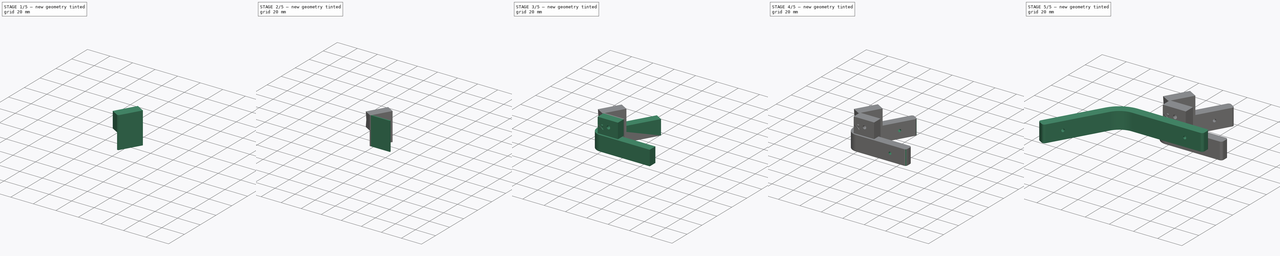
[diagram: build sequence overview — one tinted view per stage of 5, left to right]
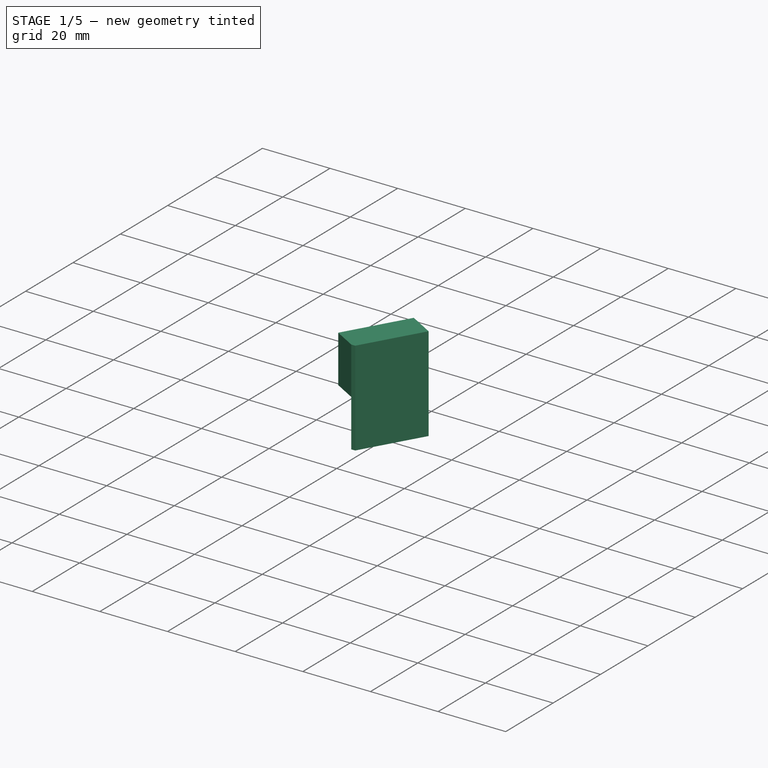
[diagram: stage 1 of 5 — iso view after this stage's code; geometry added in this stage tinted green]
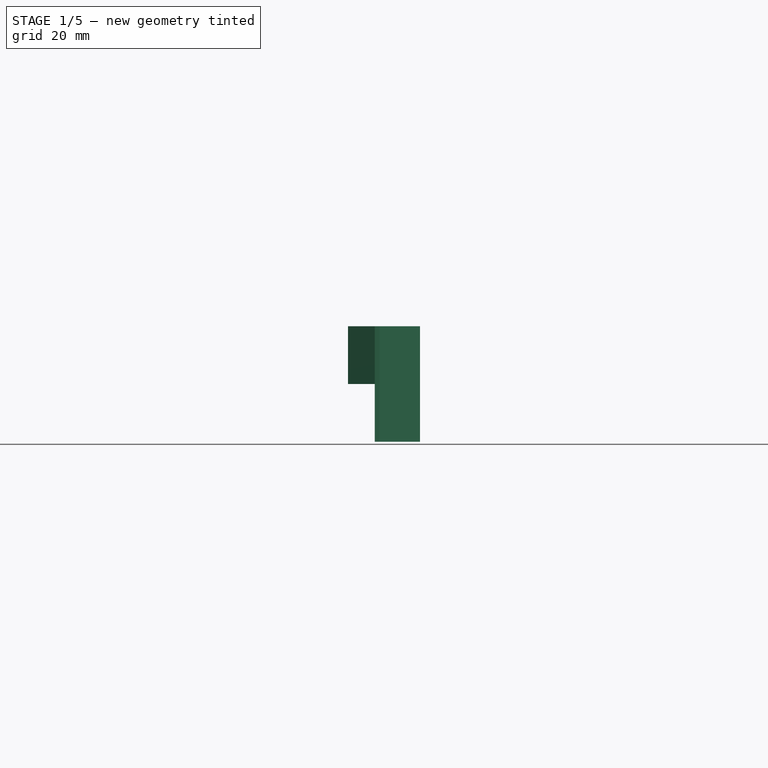
[diagram: stage 1 of 5 — front view after this stage's code; geometry added in this stage tinted green]
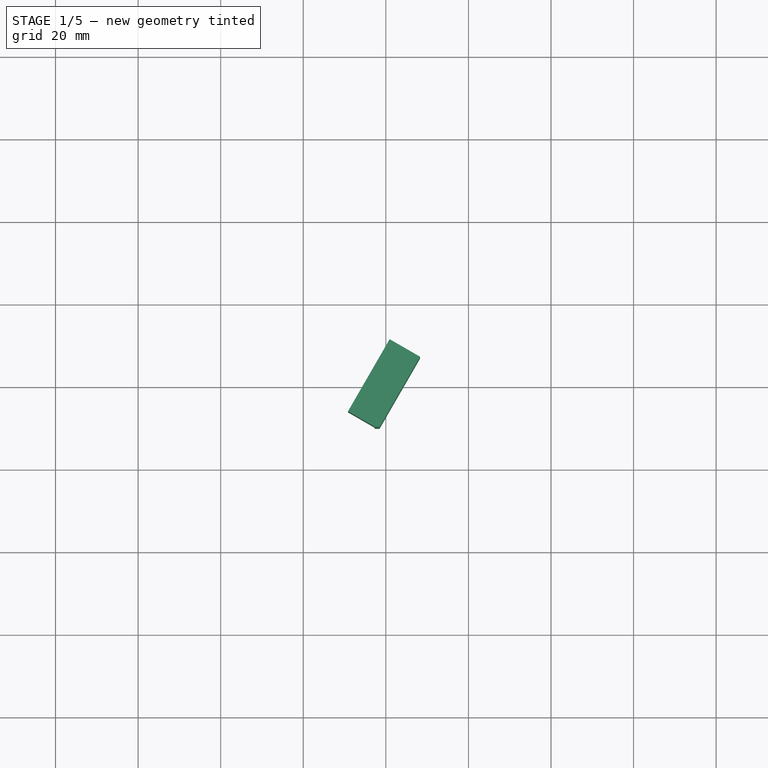
[diagram: stage 1 of 5 — top view after this stage's code; geometry added in this stage tinted green]
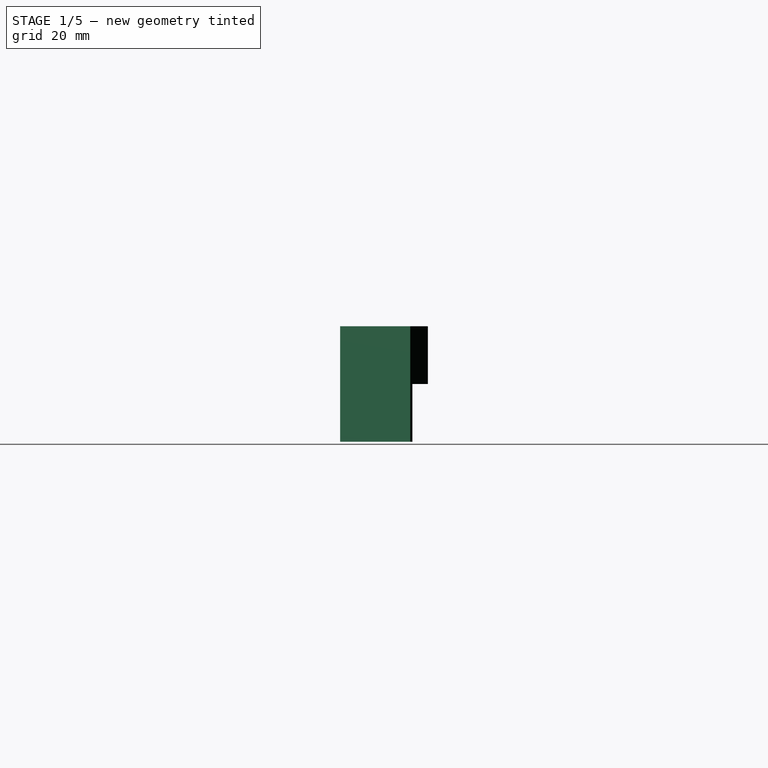
[diagram: stage 1 of 5 — right view after this stage's code; geometry added in this stage tinted green]
FCSTD DOCUMENT  (FreeCAD 0.19R)
Label: raccord
License: All rights reserved
LicenseURL: http://en.wikipedia.org/wiki/All_rights_reserved
objects: Sketcher::SketchObject×16, PartDesign::Pad×8, PartDesign::Pocket×8, PartDesign::Body×5, PartDesign::SubShapeBinder×2, PartDesign::ShapeBinder×2, PartDesign::Fillet×2
note: 61 computed .brp shape members not serialized (recipe doc carries the construction recipe); baked Part::Feature solids carry a one-line shape summary decoded from their .brp

FEATURE [Sketcher::SketchObject] Sketch
  FullyConstrained = true
  MapMode = 5
  Support = -> [XY_Plane]
  sketch-geometry (9):
    g0: LineSegment StartX=-100.981 StartY=-114.904 StartZ=0 EndX=66.3397 EndY=174.904 EndZ=0
    g1: LineSegment StartX=66.3397 StartY=174.904 StartZ=0 EndX=92.3205 EndY=159.904 EndZ=0
    g2: LineSegment StartX=92.3205 StartY=159.904 StartZ=0 EndX=17.3205 EndY=30 EndZ=0
    g3: LineSegment StartX=17.3205 StartY=30 StartZ=0 EndX=167.321 EndY=30 EndZ=0
    g4: LineSegment StartX=167.321 StartY=30 StartZ=0 EndX=167.321 EndY=0 EndZ=0
    g5: LineSegment StartX=167.321 StartY=0 StartZ=0 EndX=0 EndY=0 EndZ=0
    g6: LineSegment StartX=0 StartY=0 StartZ=0 EndX=-75 EndY=-129.904 EndZ=0
    g7: LineSegment StartX=-75 StartY=-129.904 StartZ=0 EndX=-100.981 EndY=-114.904 EndZ=0
    g8: LineSegment StartX=17.3205 StartY=30 StartZ=0 EndX=0 EndY=0 EndZ=0
  constraints (25):
    c: Coincident(g0,g1)
    c: Coincident(g1,g2)
    c: Coincident(g2,g3)
    c: Horizontal(g3)
    c: Coincident(g3,g4)
    c: Vertical(g4)
    c: Coincident(g4,g5)
    c: Coincident(g5,g6)
    c: Coincident(g6,g7)
    c: Coincident(g7,g0)
    c: Parallel(g2,g0)
    c: Parallel(g0,g6)
    c: Perpendicular(g1,g2)
    c: Perpendicular(g7,g6)
    c: Parallel(g3,g5)
    c: DistanceY(g4,g4) = 30
    c: Coincident(g8,g2)
    c: Coincident(g8,g5)
    c: Parallel(g6,g8)
    c: Distance(g1) = 30
    c: Coincident(g5,g-1)
    c: DistanceX(g3,g3) = 150
    c: Equal(g2,g6)
    c: Distance(g6) = 150
    c: Angle(g3,g2) = 1.0472
FEATURE [PartDesign::Pad] Pad
  Direction = (1,1,1)
  Length = 15
  Length2 = 100
  Profile = -> Sketch
  Type = 0
FEATURE [Sketcher::SketchObject] Sketch001
  ExternalGeometry = -> [Pad]
  FullyConstrained = true
  MapMode = 5
  Placement = pos=(0,0,15) rot=(0,0,1;0rad)
  Support = -> [Pad]
  sketch-geometry (13):
    g0: LineSegment StartX=85.8253 StartY=163.654 StartZ=0 EndX=4.33013 EndY=22.5 EndZ=0
    g1: LineSegment StartX=4.33013 StartY=22.5 StartZ=0 EndX=167.321 EndY=22.5 EndZ=0
    g2: LineSegment StartX=167.321 StartY=22.5 StartZ=0 EndX=167.321 EndY=7.5 EndZ=0
    g3: LineSegment StartX=167.321 StartY=7.5 StartZ=0 EndX=-4.33013 EndY=7.5 EndZ=0
    g4: LineSegment StartX=-4.33013 StartY=7.5 StartZ=0 EndX=-81.4952 EndY=-126.154 EndZ=0
    g5: LineSegment StartX=-81.4952 StartY=-126.154 StartZ=0 EndX=-94.4856 EndY=-118.654 EndZ=0
    g6: LineSegment StartX=-94.4856 StartY=-118.654 StartZ=0 EndX=72.8349 EndY=171.154 EndZ=0
    g7: LineSegment StartX=72.8349 StartY=171.154 StartZ=0 EndX=85.8253 EndY=163.654 EndZ=0
    g8: LineSegment StartX=167.321 StartY=30 StartZ=0 EndX=167.321 EndY=22.5 EndZ=0
    g9: LineSegment StartX=167.321 StartY=7.5 StartZ=0 EndX=167.321 EndY=0 EndZ=0
    g10: LineSegment StartX=66.3397 StartY=174.904 StartZ=0 EndX=72.8349 EndY=171.154 EndZ=0
    g11: LineSegment StartX=85.8253 StartY=163.654 StartZ=0 EndX=92.3205 EndY=159.904 EndZ=0
    g12: LineSegment StartX=4.33013 StartY=22.5 StartZ=0 EndX=-4.33013 EndY=7.5 EndZ=0
  constraints (34):
    c: PointOnObject(g0,g-6)
    c: Horizontal(g1)
    c: PointOnObject(g1,g-8)
    c: Coincident(g1,g2)
    c: PointOnObject(g2,g-8)
    c: Coincident(g2,g3)
    c: Horizontal(g3)
    c: Coincident(g3,g4)
    c: PointOnObject(g4,g-7)
    c: Coincident(g4,g5)
    c: PointOnObject(g5,g-7)
    c: Coincident(g5,g6)
    c: PointOnObject(g6,g-6)
    c: Coincident(g6,g7)
    c: Coincident(g7,g0)
    c: DistanceY(g2,g2) = 15
    c: Coincident(g8,g-8)
    c: Coincident(g8,g1)
    c: Coincident(g9,g2)
    c: Coincident(g9,g-8)
    c: Equal(g8,g9)
    c: Distance(g7) = 15
    c: Parallel(g0,g-4)
    c: Parallel(g0,g6)
    c: Parallel(g6,g4)
    c: Coincident(g10,g-6)
    c: Coincident(g10,g6)
    c: Coincident(g11,g0)
    c: Coincident(g11,g-6)
    c: Equal(g10,g11)
    c: Coincident(g1,g0)
    c: Coincident(g12,g0)
    c: Coincident(g12,g3)
    c: Parallel(g12,g0)
FEATURE [PartDesign::Pad] Pad001
  BaseFeature = -> Pad
  Direction = (1,1,1)
  Length = 15
  Length2 = 100
  Profile = -> Sketch001
  Type = 0
FEATURE [PartDesign::ShapeBinder] ShapeBinder001
  Support = -> [Pad001]
  TraceSupport = false
FEATURE [Sketcher::SketchObject] Sketch011
  ExternalGeometry = -> [ShapeBinder001]
  FullyConstrained = false
  MapMode = 5
  Placement = pos=(0,0,15) rot=(0,0,1;0rad)
  Support = -> [ShapeBinder001]
  sketch-geometry (7):
    g0: LineSegment StartX=19.0526 StartY=31 StartZ=0 EndX=96.847 EndY=31 EndZ=0
    g1: LineSegment StartX=17.3205 StartY=30 StartZ=0 EndX=27.4186 EndY=47.4904 EndZ=0
    g2: LineSegment StartX=27.4186 StartY=47.4904 StartZ=0 EndX=28.2846 EndY=46.9904 EndZ=0
    g3: LineSegment StartX=28.2846 StartY=46.9904 StartZ=0 EndX=18.4752 EndY=30 EndZ=0
    g4: LineSegment StartX=18.4752 StartY=30 StartZ=0 EndX=17.3205 EndY=30 EndZ=0
    g5: Circle CenterX=22.5167 CenterY=33 CenterZ=0 NormalX=0 NormalY=0 NormalZ=1 AngleXU=0 Radius=2
    g6: LineSegment StartX=22.5167 StartY=33 StartZ=0 EndX=19.9186 EndY=34.5 EndZ=0
  constraints (20):
    c: Horizontal(g0)
    c: DistanceY(g-3,g0) = 1
    c: Coincident(g-4,g1)
    c: PointOnObject(g1,g-4)
    c: Coincident(g1,g2)
    c: Coincident(g2,g3)
    c: PointOnObject(g3,g-3)
    c: Coincident(g3,g4)
    c: Coincident(g4,g1)
    c: Parallel(g3,g1)
    c: Distance(g2) = 1
    c: Perpendicular(g2,g1)
    c: PointOnObject(g0,g3)
    c: Radius(g5) = 2
    c: Tangent(g5,g3)
    c: Tangent(g5,g0)
    c: Coincident(g6,g5)
    c: PointOnObject(g6,g1)
    c: Perpendicular(g6,g1)
    c: Distance(g6,g1) = 15
FEATURE [PartDesign::Pad] Pad006
  Direction = (1,1,1)
  Length = 28
  Length2 = 100
  Midplane = true
  Profile = -> Sketch011
  Type = 0
FEATURE [Sketcher::SketchObject] Sketch012
  ExternalGeometry = -> [Pad006]
  FullyConstrained = true
  MapMode = 5
  Placement = pos=(-6.2e-15,3.6e-15,0) rot=(-0.377964,0.654654,0.654654;3.86433rad)
  Support = -> [Pad006]
  sketch-geometry (4):
    g0: LineSegment StartX=-54.8372 StartY=29 StartZ=0 EndX=-34.641 EndY=29 EndZ=0
    g1: LineSegment StartX=-34.641 StartY=29 StartZ=0 EndX=-34.641 EndY=15 EndZ=0
    g2: LineSegment StartX=-34.641 StartY=15 StartZ=0 EndX=-54.8372 EndY=15 EndZ=0
    g3: LineSegment StartX=-54.8372 StartY=15 StartZ=0 EndX=-54.8372 EndY=29 EndZ=0
  constraints (10):
    c: Coincident(g0,g1)
    c: Coincident(g1,g2)
    c: Coincident(g2,g3)
    c: Coincident(g3,g0)
    c: Horizontal(g2)
    c: Vertical(g1)
    c: Vertical(g3)
    c: Coincident(g0,g-4)
    c: Coincident(g0,g-3)
    c: DistanceY(g1,g1) = 14
FEATURE [PartDesign::Pad] Pad007
  BaseFeature = -> Pad006
  Direction = (1,1,1)
  Length = 7.5
  Length2 = 100
  Profile = -> Sketch012
  Type = 0
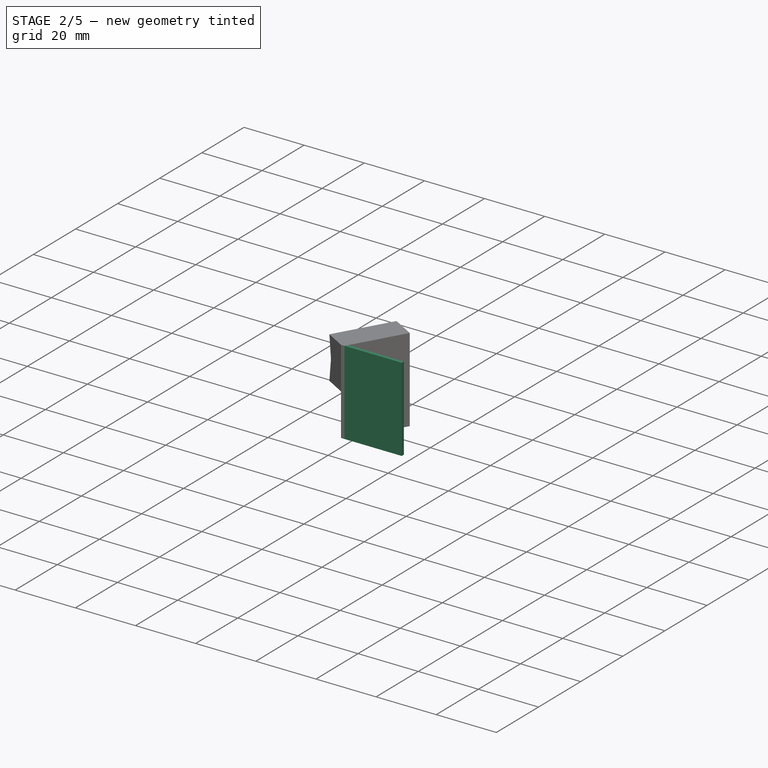
[diagram: stage 2 of 5 — iso view after this stage's code; geometry added in this stage tinted green]
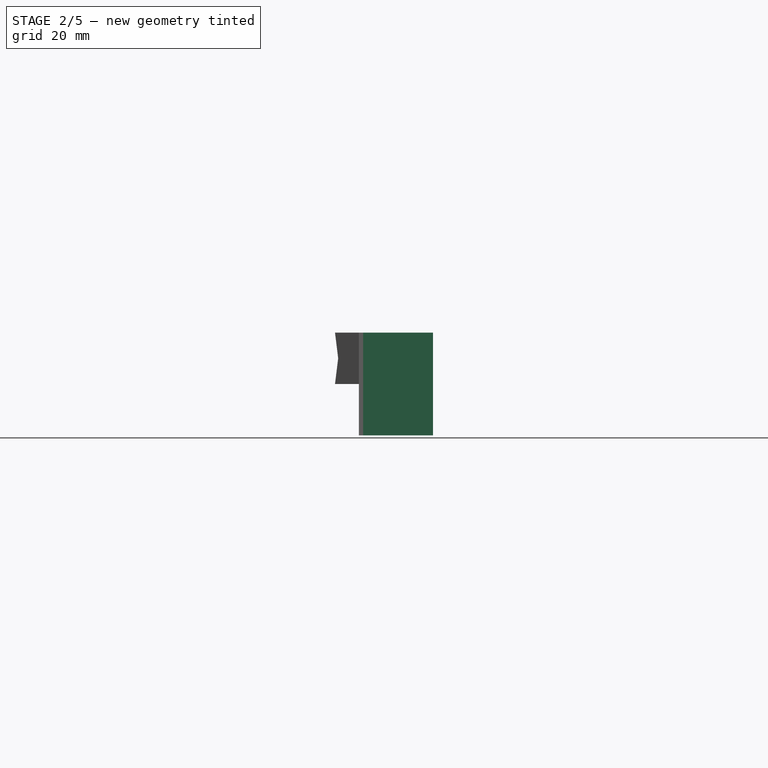
[diagram: stage 2 of 5 — front view after this stage's code; geometry added in this stage tinted green]
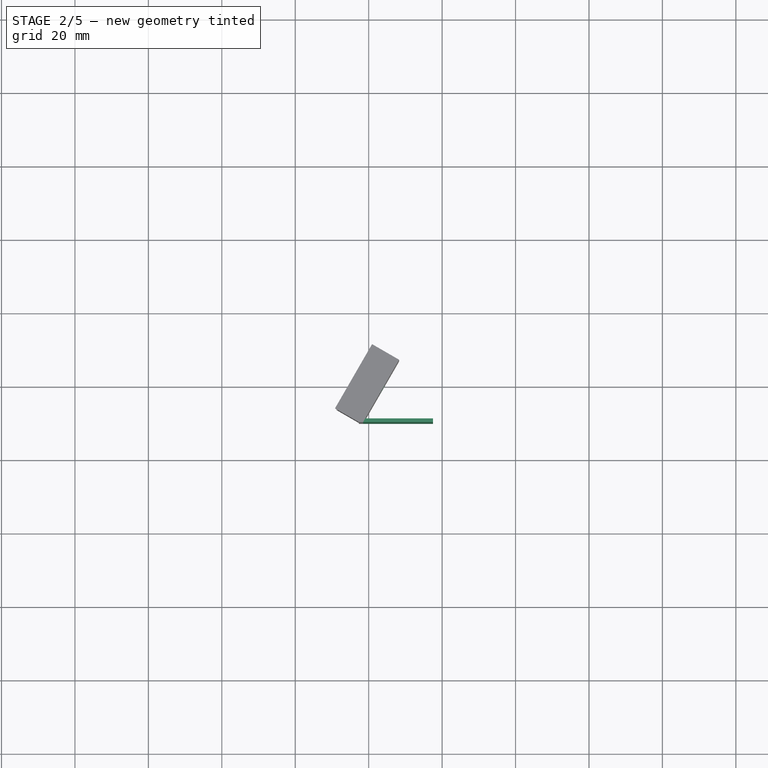
[diagram: stage 2 of 5 — top view after this stage's code; geometry added in this stage tinted green]
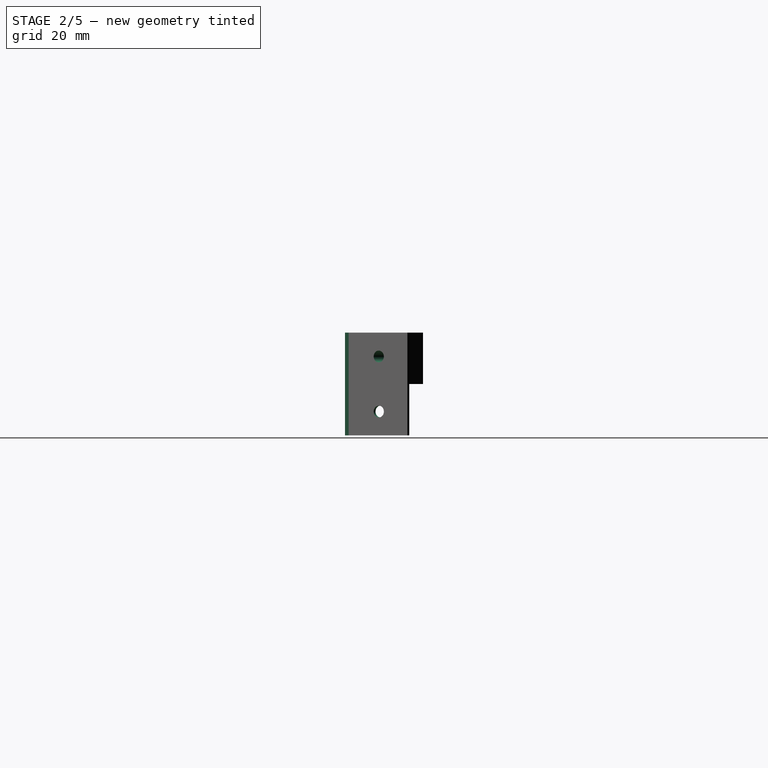
[diagram: stage 2 of 5 — right view after this stage's code; geometry added in this stage tinted green]
FEATURE [PartDesign::Body] Body001  label="support-inter"
  Group = -> [Binder,Sketch002,Pad002,Sketch006,Pocket002,Sketch007,Pocket003,Fillet001]
  Origin = -> Origin001
  Placement = pos=(0,0,15) rot=(0,0,1;0rad)
  Tip = -> Fillet001
FEATURE [PartDesign::SubShapeBinder] Binder001
  BindMode = 0
  ClaimChildren = false
  Context = -> Body003 [Binder001.]
  Fuse = false
  MakeFace = true
  PartialLoad = false
  Relative = true
  Support = -> [Body[Pad001.Face11]]
  _Version = 2
FEATURE [Sketcher::SketchObject] Sketch008
  ExternalGeometry = -> [Binder001]
  FullyConstrained = false
  MapMode = 5
  Placement = pos=(0,0,15) rot=(0,0,1;0rad)
  Support = -> [Binder001]
  sketch-geometry (8):
    g0: LineSegment StartX=19.0526 StartY=31 StartZ=0 EndX=18.4752 EndY=30 EndZ=0
    g1: LineSegment StartX=18.4752 StartY=30 StartZ=0 EndX=37.5167 EndY=30 EndZ=0
    g2: LineSegment StartX=37.5167 StartY=30 StartZ=0 EndX=37.5167 EndY=31 EndZ=0
    g3: LineSegment StartX=37.5167 StartY=31 StartZ=0 EndX=19.0526 EndY=31 EndZ=0
    g4: LineSegment StartX=19.0526 StartY=31 StartZ=0 EndX=37.9859 EndY=63.7935 EndZ=0
    g5: Circle CenterX=22.5167 CenterY=33 CenterZ=0 NormalX=0 NormalY=0 NormalZ=1 AngleXU=0 Radius=2
    g6: LineSegment StartX=22.5167 StartY=33 StartZ=0 EndX=22.5167 EndY=30 EndZ=0
    g7: LineSegment StartX=19.0526 StartY=31 StartZ=0 EndX=18.4752 EndY=30 EndZ=0
  constraints (22):
    c: Coincident(g0,g1)
    c: PointOnObject(g1,g-3)
    c: Coincident(g1,g2)
    c: Vertical(g2)
    c: Coincident(g2,g3)
    c: Coincident(g3,g0)
    c: Horizontal(g3)
    c: Parallel(g4,g-4)
    c: Distance(g4,g-4) = 1
    c: DistanceY(g2,g2) = 1
    c: Coincident(g4,g0)
    c: Radius(g5) = 2
    c: Tangent(g5,g4)
    c: Tangent(g5,g3)
    c: Coincident(g6,g5)
    c: Vertical(g6)
    c: PointOnObject(g6,g1)
    c: DistanceX(g6,g1) = 15
    c: PointOnObject(g0,g-3)
    c: Coincident(g7,g0)
    c: Parallel(g7,g-4)
    c: Coincident(g0,g7)
FEATURE [PartDesign::Pad] Pad004
  Direction = (1,1,1)
  Length = 28
  Length2 = 100
  Midplane = true
  Profile = -> Sketch008
  Type = 0
FEATURE [Sketcher::SketchObject] Sketch013
  ExternalGeometry = -> [Pad007]
  FullyConstrained = true
  MapMode = 5
  Placement = pos=(0.866025,-0.5,0) rot=(0.774597,0.447214,0.447214;1.82348rad)
  Support = -> [Pad007]
  sketch-geometry (4):
    g0: LineSegment StartX=45.8372 StartY=29 StartZ=0 EndX=45.8372 EndY=1 EndZ=0
    g1: Circle CenterX=45.8372 CenterY=22.5 CenterZ=0 NormalX=0 NormalY=0 NormalZ=1 AngleXU=0 Radius=1.6
    g2: Circle CenterX=45.8372 CenterY=7.5 CenterZ=0 NormalX=0 NormalY=0 NormalZ=1 AngleXU=0 Radius=1.6
    g3: GeomPoint X=45.8372 Y=15 Z=0
  constraints (10):
    c: PointOnObject(g0,g-3)
    c: PointOnObject(g0,g-4)
    c: Vertical(g0)
    c: DistanceX(g0,g-5) = 9
    c: PointOnObject(g1,g0)
    c: Equal(g2,g1)
    c: Radius(g2) = 1.6
    c: Symmetric(g1,g2,g3)
    c: Symmetric(g0,g0,g3)
    c: DistanceY(g2,g1) = 15
FEATURE [PartDesign::Pocket] Pocket005
  BaseFeature = -> Pad007
  Length = 5
  Length2 = 100
  Profile = -> Sketch013
  Type = 1
FEATURE [PartDesign::Body] Body003  label="support_charniere1"
  Group = -> [Binder001,Sketch008,Pad004,Sketch009,Pad005,Sketch010,Pocket004,Sketch014,Pocket006]
  Origin = -> Origin003
  Tip = -> Pocket006
FEATURE [Sketcher::SketchObject] Sketch015
  ExternalGeometry = -> [Pocket005]
  FullyConstrained = true
  MapMode = 5
  Placement = pos=(-6.49519,3.75,0) rot=(-0.377964,0.654654,0.654654;3.86433rad)
  Support = -> [Pocket005]
  sketch-geometry (3):
    g0: LineSegment StartX=-39.8372 StartY=25 StartZ=0 EndX=-39.8372 EndY=19 EndZ=0
    g1: LineSegment StartX=-39.8372 StartY=19 StartZ=0 EndX=-34.641 EndY=22 EndZ=0
    g2: LineSegment StartX=-34.641 StartY=22 StartZ=0 EndX=-39.8372 EndY=25 EndZ=0
  constraints (8):
    c: Coincident(g0,g1)
    c: Coincident(g1,g2)
    c: Coincident(g2,g0)
    c: Vertical(g0)
    c: Symmetric(g-3,g-3,g1)
    c: Equal(g2,g1)
    c: Equal(g1,g0)
    c: DistanceY(g0,g0) = 6
FEATURE [PartDesign::Pocket] Pocket007
  BaseFeature = -> Pocket005
  Length = 1
  Length2 = 100
  Profile = -> Sketch015
  Type = 0
FEATURE [PartDesign::Body] Body004  label="support_charniere2"
  Group = -> [ShapeBinder001,Sketch011,Pad006,Sketch012,Pad007,Sketch013,Pocket005,Sketch015,Pocket007]
  Origin = -> Origin004
  Tip = -> Pocket007
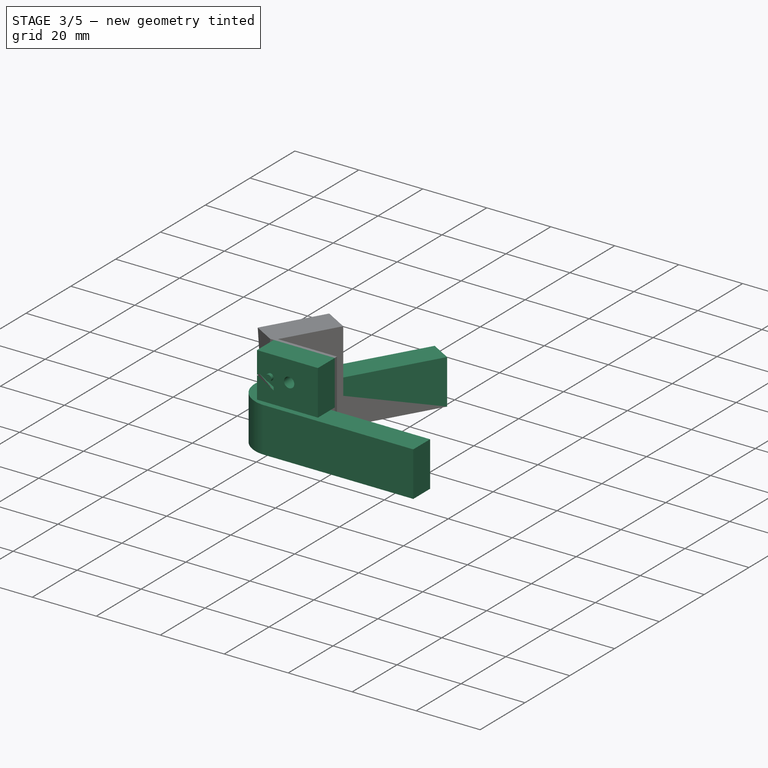
[diagram: stage 3 of 5 — iso view after this stage's code; geometry added in this stage tinted green]
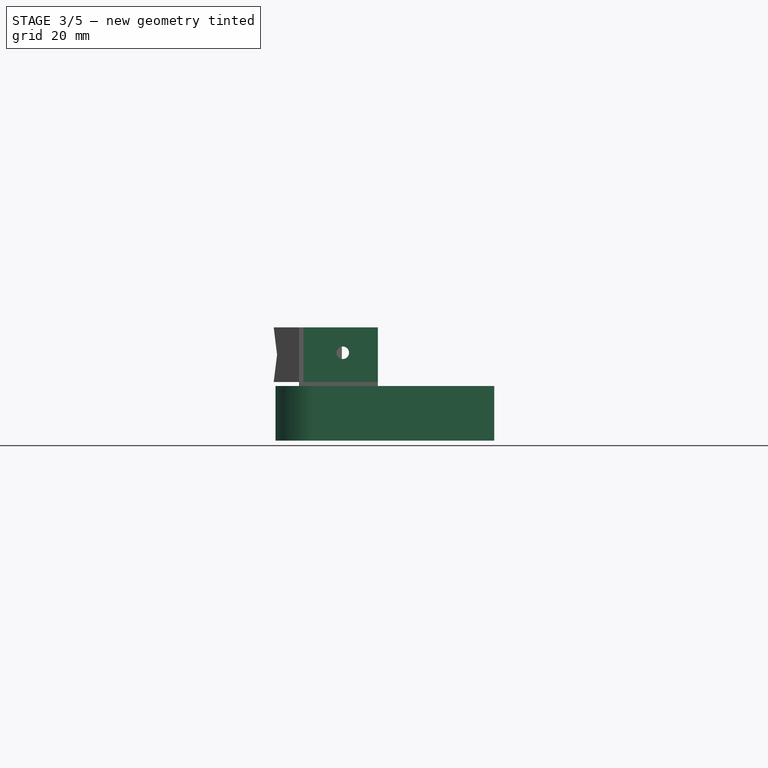
[diagram: stage 3 of 5 — front view after this stage's code; geometry added in this stage tinted green]
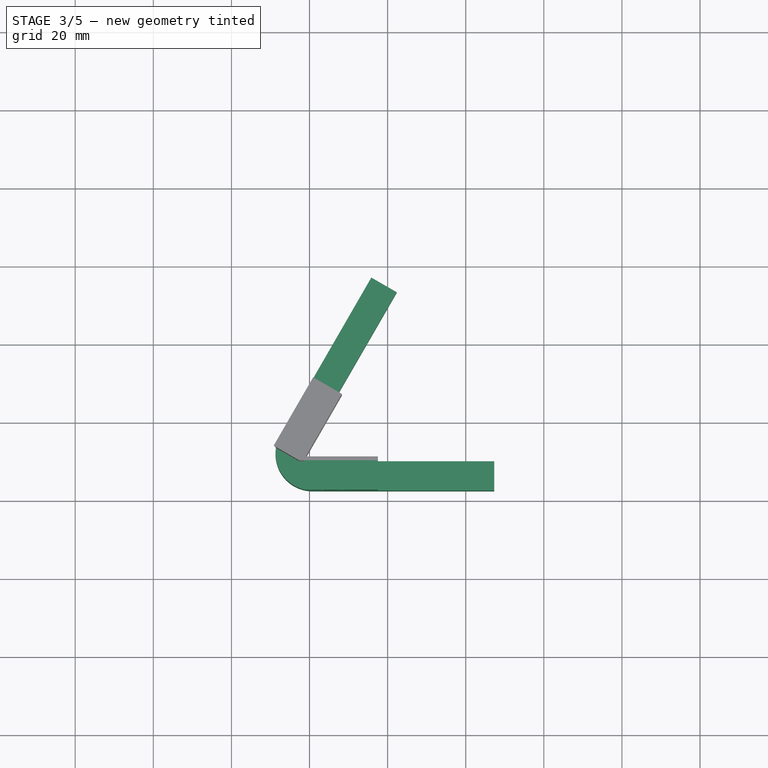
[diagram: stage 3 of 5 — top view after this stage's code; geometry added in this stage tinted green]
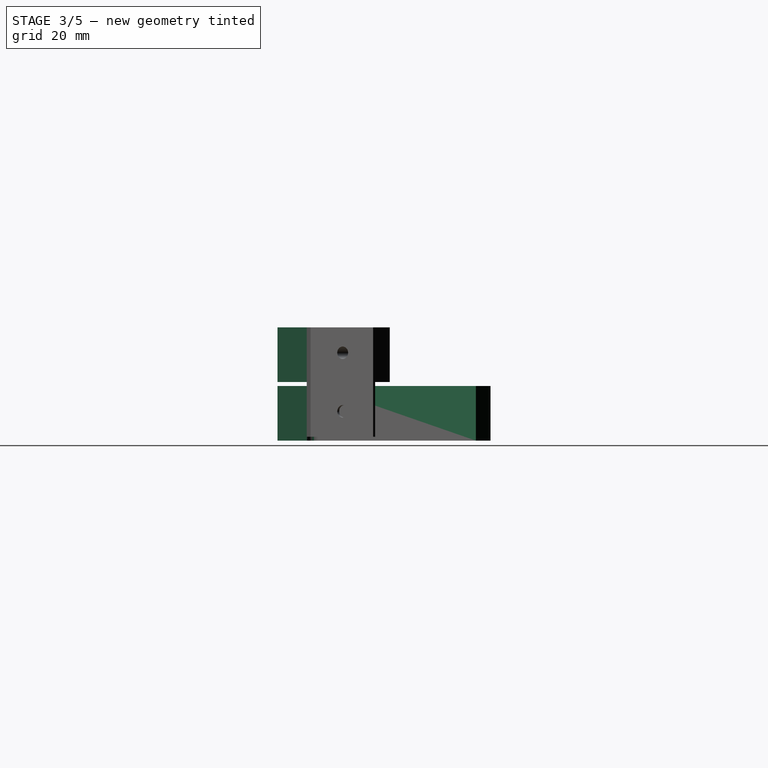
[diagram: stage 3 of 5 — right view after this stage's code; geometry added in this stage tinted green]
FEATURE [PartDesign::Body] Body  label="Branche"
  Group = -> [Sketch,Pad,Sketch001,Pad001]
  Origin = -> Origin
  Tip = -> Pad001
FEATURE [PartDesign::SubShapeBinder] Binder
  BindMode = 0
  ClaimChildren = false
  Context = -> Body001 [Binder.]
  Fuse = false
  MakeFace = true
  PartialLoad = false
  Relative = true
  Support = -> [Body[Pad001.Face11]]
  _Version = 2
FEATURE [Sketcher::SketchObject] Sketch002
  ExternalGeometry = -> [Binder]
  FullyConstrained = true
  MapMode = 5
  Support = -> [XY_Plane001]
  sketch-geometry (12):
    g0: LineSegment StartX=52.3205 StartY=50.2073 StartZ=0 EndX=52.3205 EndY=22.5 EndZ=0
    g1: LineSegment StartX=52.3205 StartY=50.2073 StartZ=0 EndX=28.3253 EndY=64.0609 EndZ=0
    g2: GeomPoint X=34.8205 Y=60.3109 Z=0
    g3: GeomPoint X=52.3205 Y=30 Z=0
    g4: LineSegment StartX=67.3205 StartY=22.5 StartZ=0 EndX=20.7846 EndY=22.5 EndZ=0
    g5: LineSegment StartX=12.5574 StartY=36.75 StartZ=0 EndX=35.8253 EndY=77.0513 EndZ=0
    g6: LineSegment StartX=35.8253 StartY=77.0513 StartZ=0 EndX=42.3205 EndY=73.3013 EndZ=0
    g7: LineSegment StartX=42.3205 StartY=73.3013 StartZ=0 EndX=19.0526 EndY=33 EndZ=0
    g8: LineSegment StartX=20.7846 StartY=30 StartZ=0 EndX=67.3205 EndY=30 EndZ=0
    g9: LineSegment StartX=67.3205 StartY=30 StartZ=0 EndX=67.3205 EndY=22.5 EndZ=0
    g10: ArcOfCircle CenterX=20.7846 CenterY=32 CenterZ=0 NormalX=0 NormalY=0 NormalZ=1 AngleXU=0 Radius=9.5 StartAngle=2.61799 EndAngle=4.71239
    g11: ArcOfCircle CenterX=20.7846 CenterY=32 CenterZ=0 NormalX=0 NormalY=0 NormalZ=1 AngleXU=0 Radius=2 StartAngle=2.618 EndAngle=4.71239
  constraints (35):
    c: PointOnObject(g2,g1)
    c: PointOnObject(g3,g0)
    c: PointOnObject(g5,g-6)
    c: Coincident(g5,g6)
    c: PointOnObject(g6,g-4)
    c: Coincident(g6,g7)
    c: PointOnObject(g8,g-3)
    c: Coincident(g8,g9)
    c: Coincident(g9,g4)
    c: Vertical(g9)
    c: Tangent(g4,g10) = 1.5708
    c: Tangent(g5,g10) = 1.5708
    c: PointOnObject(g5,g-6)
    c: Vertical(g8,g4)
    c: Distance(g5,g1) = 15
    c: DistanceX(g0,g4) = 15
    c: PointOnObject(g0,g-5)
    c: PointOnObject(g1,g-6)
    c: DistanceX(g4,g-5) = 100
    c: PointOnObject(g3,g8)
    c: Horizontal(g8)
    c: PointOnObject(g7,g-4)
    c: Coincident(g11,g10)
    c: Coincident(g11,g7)
    c: Coincident(g11,g8)
    c: Vertical(g0)
    c: PointOnObject(g4,g-5)
    c: Perpendicular(g1,g7)
    c: Coincident(g0,g1)
    c: Equal(g0,g1)
    c: Radius(g11) = 2
    c: PointOnObject(g4,g-5)
    c: PointOnObject(g2,g7)
    c: Perpendicular(g6,g5)
    c: Distance(g5,g-6) = 62.9904
FEATURE [PartDesign::Pad] Pad002
  Direction = (1,1,1)
  Length = 14
  Length2 = 100
  Profile = -> Sketch002
  Type = 0
FEATURE [Sketcher::SketchObject] Sketch009
  ExternalGeometry = -> [Pad004]
  FullyConstrained = true
  MapMode = 5
  Placement = pos=(1.11e-14,30,0) rot=(1,0,0;1.5708rad)
  Support = -> [Pad004]
  sketch-geometry (4):
    g0: LineSegment StartX=18.4752 StartY=29 StartZ=0 EndX=37.5167 EndY=29 EndZ=0
    g1: LineSegment StartX=37.5167 StartY=29 StartZ=0 EndX=37.5167 EndY=15 EndZ=0
    g2: LineSegment StartX=37.5167 StartY=15 StartZ=0 EndX=18.4752 EndY=15 EndZ=0
    g3: LineSegment StartX=18.4752 StartY=15 StartZ=0 EndX=18.4752 EndY=29 EndZ=0
  constraints (11):
    c: Coincident(g0,g1)
    c: Coincident(g1,g2)
    c: Coincident(g2,g3)
    c: Coincident(g3,g0)
    c: Horizontal(g0)
    c: Horizontal(g2)
    c: Vertical(g1)
    c: Vertical(g3)
    c: Coincident(g0,g-3)
    c: PointOnObject(g1,g-4)
    c: DistanceY(g1,g1) = 14
FEATURE [PartDesign::Pad] Pad005
  BaseFeature = -> Pad004
  Direction = (1,1,1)
  Length = 7.5
  Length2 = 100
  Profile = -> Sketch009
  Type = 0
FEATURE [Sketcher::SketchObject] Sketch010
  ExternalGeometry = -> [Pad005]
  FullyConstrained = true
  MapMode = 5
  Placement = pos=(0,31,0) rot=(0,0.707107,0.707107;3.14159rad)
  Support = -> [Pad005]
  sketch-geometry (4):
    g0: LineSegment StartX=-28.5167 StartY=29 StartZ=0 EndX=-28.5167 EndY=1 EndZ=0
    g1: Circle CenterX=-28.5167 CenterY=22.5 CenterZ=0 NormalX=0 NormalY=0 NormalZ=1 AngleXU=0 Radius=1.6
    g2: Circle CenterX=-28.5167 CenterY=7.5 CenterZ=0 NormalX=0 NormalY=0 NormalZ=1 AngleXU=0 Radius=1.6
    g3: GeomPoint X=-28.5167 Y=15 Z=0
  constraints (10):
    c: PointOnObject(g0,g-4)
    c: Vertical(g0)
    c: PointOnObject(g0,g-5)
    c: DistanceX(g-5,g0) = 9
    c: PointOnObject(g1,g0)
    c: Equal(g2,g1)
    c: Radius(g2) = 1.6
    c: DistanceY(g2,g1) = 15
    c: Symmetric(g1,g2,g3)
    c: Symmetric(g0,g0,g3)
FEATURE [PartDesign::Pocket] Pocket004
  BaseFeature = -> Pad005
  Length = 5
  Length2 = 100
  Profile = -> Sketch010
  Type = 1
FEATURE [Sketcher::SketchObject] Sketch014
  ExternalGeometry = -> [Pocket004]
  FullyConstrained = true
  MapMode = 5
  Placement = pos=(8.3e-15,22.5,-5.6e-15) rot=(1,0,0;1.5708rad)
  Support = -> [Pocket004]
  sketch-geometry (7):
    g0: LineSegment StartX=23.6714 StartY=25 StartZ=0 EndX=23.6714 EndY=19 EndZ=0
    g1: LineSegment StartX=23.6714 StartY=25 StartZ=0 EndX=18.4752 EndY=22 EndZ=0
    g2: LineSegment StartX=18.4752 StartY=22 StartZ=0 EndX=23.6714 EndY=19 EndZ=0
    g3: Circle CenterX=21.9393 CenterY=22 CenterZ=0 NormalX=0 NormalY=0 NormalZ=1 AngleXU=0 Radius=1
    g4: LineSegment StartX=21.9393 StartY=22 StartZ=0 EndX=23.6714 EndY=25 EndZ=0
    g5: LineSegment StartX=21.9393 StartY=22 StartZ=0 EndX=23.6714 EndY=19 EndZ=0
    g6: LineSegment StartX=21.9393 StartY=22 StartZ=0 EndX=18.4752 EndY=22 EndZ=0
  constraints (17):
    c: Vertical(g0)
    c: DistanceY(g0,g0) = 6
    c: Coincident(g0,g1)
    c: Coincident(g1,g2)
    c: Coincident(g2,g0)
    c: Equal(g1,g2)
    c: Equal(g2,g0)
    c: Symmetric(g-3,g-3,g1)
    c: Coincident(g4,g3)
    c: Coincident(g4,g0)
    c: Coincident(g5,g3)
    c: Coincident(g5,g0)
    c: Coincident(g6,g3)
    c: Coincident(g6,g1)
    c: Equal(g6,g4)
    c: Equal(g4,g5)
    c: Radius(g3) = 1
FEATURE [PartDesign::Pocket] Pocket006
  BaseFeature = -> Pocket004
  Length = 1
  Length2 = 100
  Profile = -> Sketch014
  Type = 0
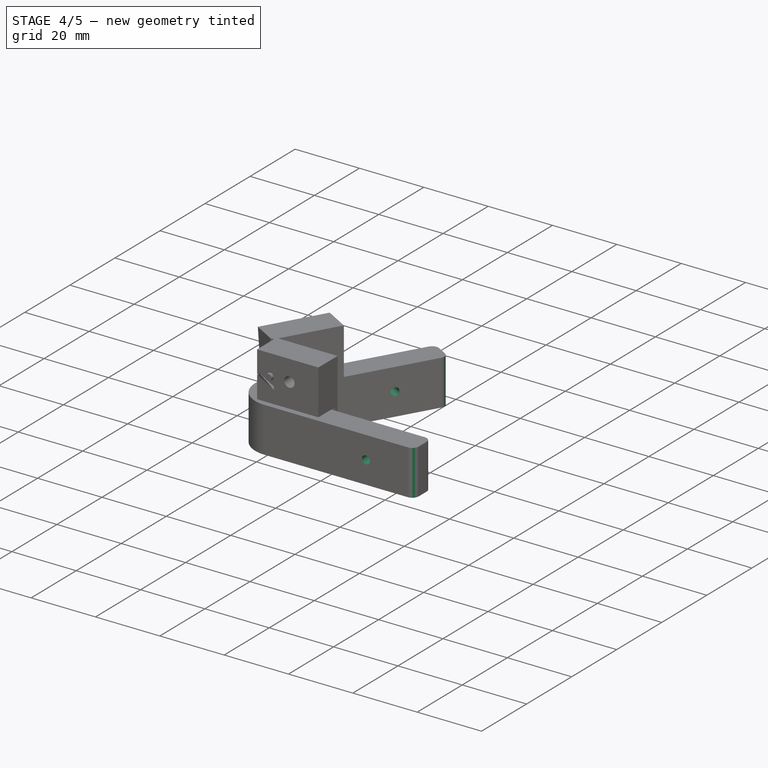
[diagram: stage 4 of 5 — iso view after this stage's code; geometry added in this stage tinted green]
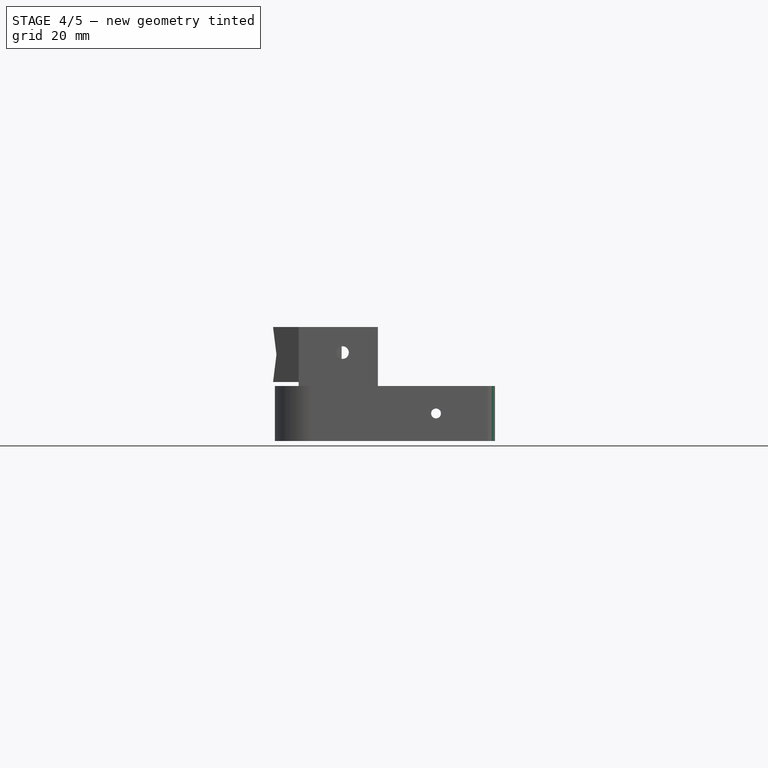
[diagram: stage 4 of 5 — front view after this stage's code; geometry added in this stage tinted green]
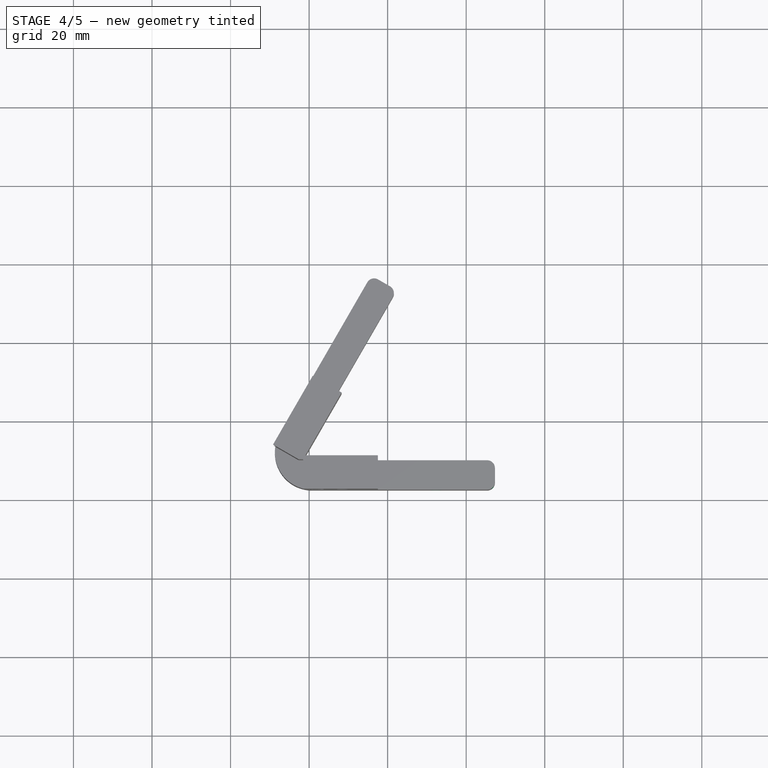
[diagram: stage 4 of 5 — top view after this stage's code; geometry added in this stage tinted green]
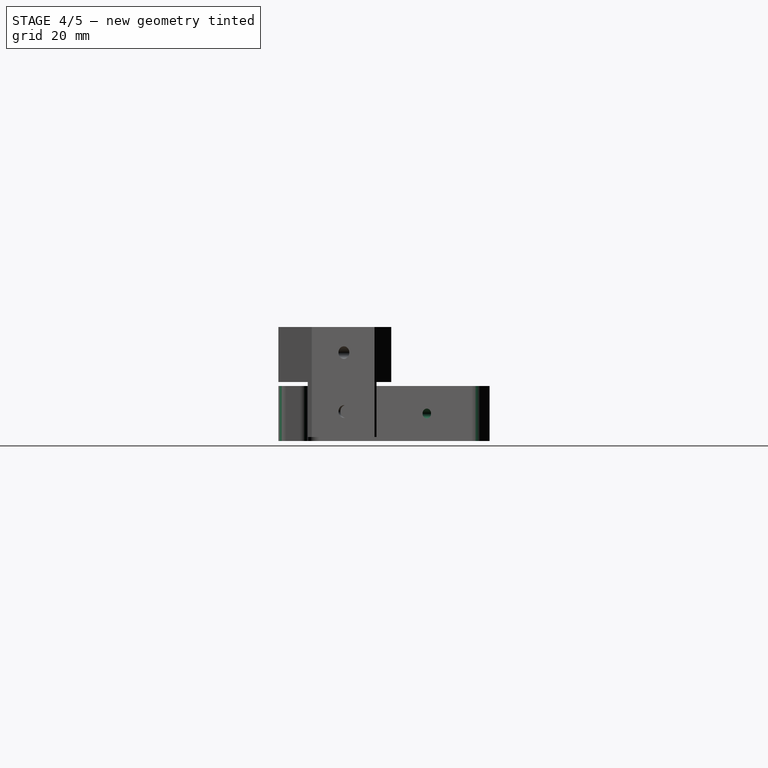
[diagram: stage 4 of 5 — right view after this stage's code; geometry added in this stage tinted green]
FEATURE [Sketcher::SketchObject] Sketch006
  ExternalGeometry = -> [Pad002]
  FullyConstrained = true
  MapMode = 5
  Placement = pos=(0,30,0) rot=(0,0.707107,0.707107;3.14159rad)
  Support = -> [Pad002]
  sketch-geometry (3):
    g0: LineSegment StartX=-67.3205 StartY=14 StartZ=0 EndX=-52.3205 EndY=7 EndZ=0
    g1: LineSegment StartX=-52.3205 StartY=7 StartZ=0 EndX=-67.3205 EndY=0 EndZ=0
    g2: Circle CenterX=-52.3205 CenterY=7 CenterZ=0 NormalX=0 NormalY=0 NormalZ=1 AngleXU=0 Radius=1.25
  constraints (7):
    c: Coincident(g-4,g0)
    c: Coincident(g0,g1)
    c: Coincident(g1,g-3)
    c: Equal(g0,g1)
    c: DistanceX(g1,g0) = 15
    c: Coincident(g2,g0)
    c: Diameter(g2) = 2.5
FEATURE [PartDesign::Pocket] Pocket002
  BaseFeature = -> Pad002
  Length = 5
  Length2 = 100
  Profile = -> Sketch006
  Type = 1
FEATURE [Sketcher::SketchObject] Sketch007
  ExternalGeometry = -> [Pocket002]
  FullyConstrained = true
  MapMode = 5
  Placement = pos=(-6.49519,3.75,0) rot=(-0.377964,0.654654,0.654654;3.86433rad)
  Support = -> [Pocket002]
  sketch-geometry (3):
    g0: LineSegment StartX=-84.641 StartY=6.4e-15 StartZ=0 EndX=-69.641 EndY=7 EndZ=0
    g1: LineSegment StartX=-69.641 StartY=7 StartZ=0 EndX=-84.641 EndY=14 EndZ=0
    g2: Circle CenterX=-69.641 CenterY=7 CenterZ=0 NormalX=0 NormalY=0 NormalZ=1 AngleXU=0 Radius=1.25
  constraints (7):
    c: Coincident(g-4,g0)
    c: Coincident(g0,g1)
    c: Coincident(g1,g-4)
    c: Equal(g1,g0)
    c: Coincident(g2,g0)
    c: Diameter(g2) = 2.5
    c: DistanceX(g0,g2) = 15
FEATURE [PartDesign::Pocket] Pocket003
  BaseFeature = -> Pocket002
  Length = 5
  Length2 = 100
  Profile = -> Sketch007
  Type = 1
FEATURE [PartDesign::Body] Body002  label="support-exter"
  Group = -> [ShapeBinder,Sketch003,Pad003,Sketch004,Pocket,Sketch005,Pocket001,Fillet]
  Origin = -> Origin002
  Tip = -> Fillet
FEATURE [PartDesign::Fillet] Fillet001
  Base = -> Pocket003 [Edge24,Edge28,Edge21,Edge4]
  BaseFeature = -> Pocket003
  Radius = 2
  SupportTransform = false
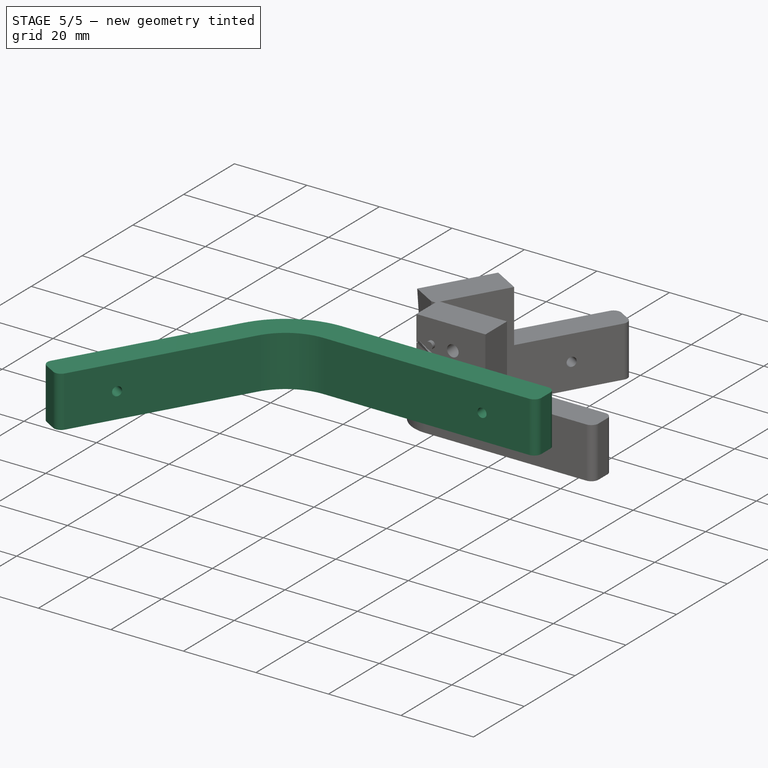
[diagram: stage 5 of 5 — iso view after this stage's code; geometry added in this stage tinted green]
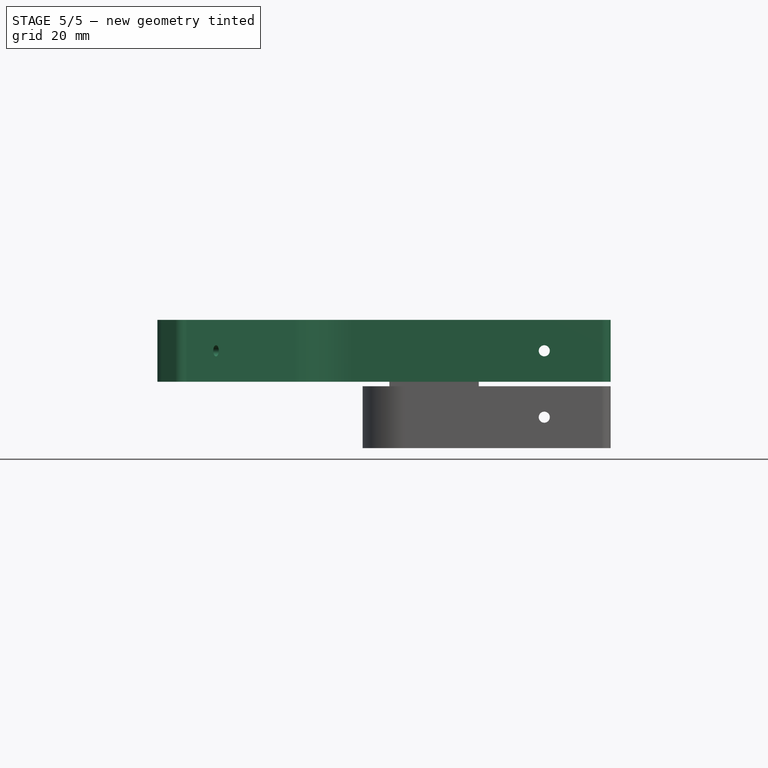
[diagram: stage 5 of 5 — front view after this stage's code; geometry added in this stage tinted green]
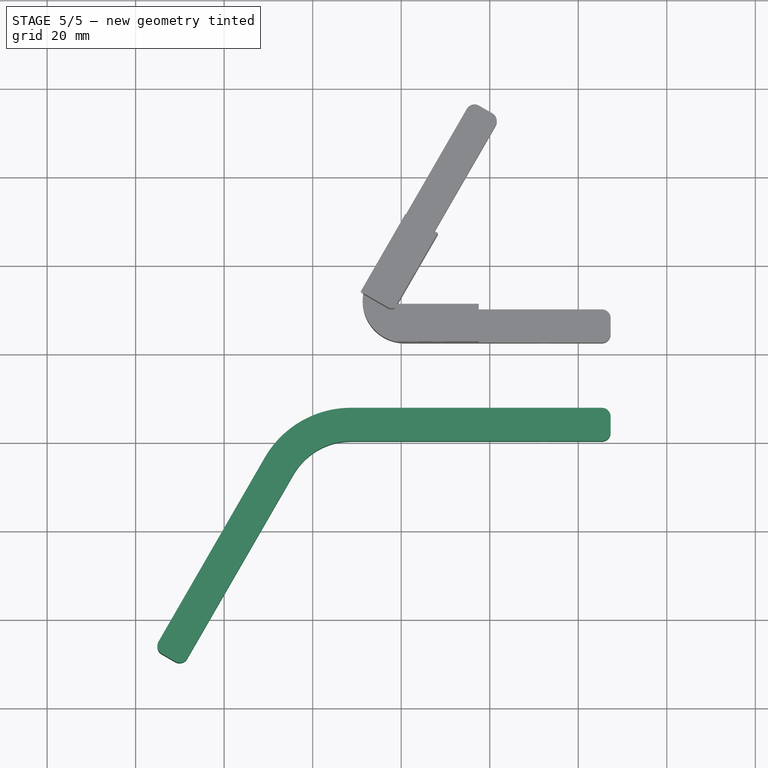
[diagram: stage 5 of 5 — top view after this stage's code; geometry added in this stage tinted green]
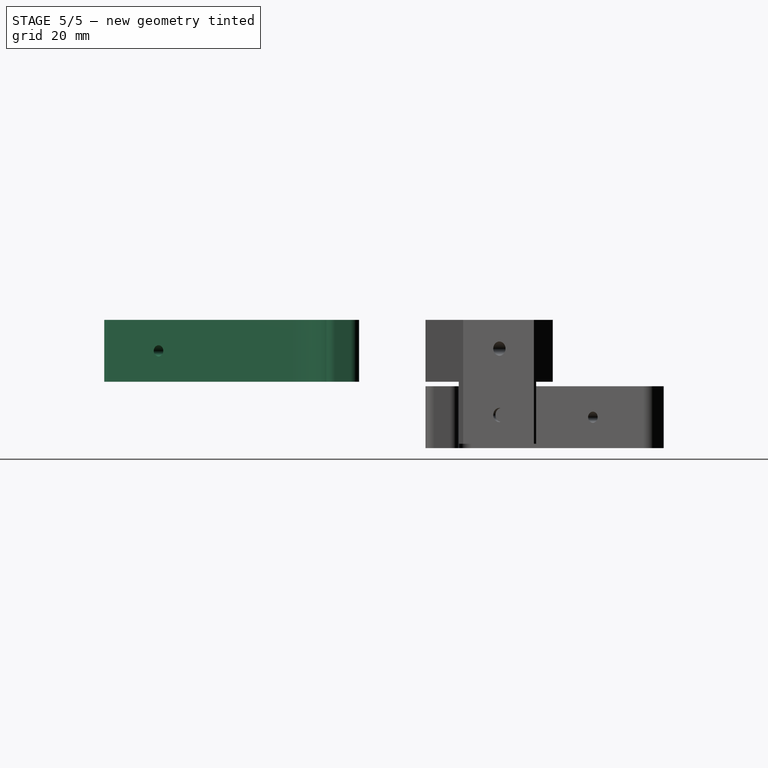
[diagram: stage 5 of 5 — right view after this stage's code; geometry added in this stage tinted green]
FEATURE [PartDesign::ShapeBinder] ShapeBinder
  Support = -> [Pad001]
  TraceSupport = false
FEATURE [Sketcher::SketchObject] Sketch003
  ExternalGeometry = -> [ShapeBinder]
  FullyConstrained = true
  MapMode = 5
  Placement = pos=(0,0,15) rot=(0,0,1;0rad)
  Support = -> [ShapeBinder]
  sketch-geometry (8):
    g0: LineSegment StartX=-10.8253 StartY=-3.75 StartZ=0 EndX=-35.8301 EndY=-47.0596 EndZ=0
    g1: LineSegment StartX=-35.8301 StartY=-47.0596 StartZ=0 EndX=-29.3349 EndY=-50.8096 EndZ=0
    g2: LineSegment StartX=-29.3349 StartY=-50.8096 StartZ=0 EndX=-4.33013 EndY=-7.5 EndZ=0
    g3: LineSegment StartX=8.66025 StartY=0 StartZ=0 EndX=67.3205 EndY=0 EndZ=0
    g4: LineSegment StartX=67.3205 StartY=0 StartZ=0 EndX=67.3205 EndY=7.5 EndZ=0
    g5: LineSegment StartX=67.3205 StartY=7.5 StartZ=0 EndX=8.66025 EndY=7.5 EndZ=0
    g6: ArcOfCircle CenterX=8.66025 CenterY=-15 CenterZ=0 NormalX=0 NormalY=0 NormalZ=1 AngleXU=0 Radius=22.5 StartAngle=1.5708 EndAngle=2.61799
    g7: ArcOfCircle CenterX=8.66025 CenterY=-15 CenterZ=0 NormalX=0 NormalY=0 NormalZ=1 AngleXU=0 Radius=15 StartAngle=1.5708 EndAngle=2.61799
  constraints (21):
    c: Coincident(g0,g1)
    c: Coincident(g1,g2)
    c: Horizontal(g3)
    c: Coincident(g3,g4)
    c: Vertical(g4)
    c: Coincident(g4,g5)
    c: Horizontal(g5)
    c: PointOnObject(g4,g-3)
    c: PointOnObject(g3,g-1)
    c: PointOnObject(g1,g-5)
    c: PointOnObject(g0,g-4)
    c: Perpendicular(g0,g1)
    c: Tangent(g5,g6) = -1.5708
    c: Tangent(g0,g6) = -1.5708
    c: Tangent(g3,g7) = 1.5708
    c: Tangent(g2,g7) = 1.5708
    c: Coincident(g7,g6)
    c: PointOnObject(g2,g-5)
    c: DistanceX(g4,g-3) = 100
    c: Radius(g7) = 15
    c: Distance(g-4,g0) = 63
FEATURE [PartDesign::Pad] Pad003
  Direction = (1,1,1)
  Length = 14
  Length2 = 100
  Profile = -> Sketch003
  Type = 0
FEATURE [Sketcher::SketchObject] Sketch004
  ExternalGeometry = -> [Pad003]
  FullyConstrained = true
  MapMode = 5
  Placement = pos=(0,0,0) rot=(1,0,0;1.5708rad)
  Support = -> [Pad003]
  sketch-geometry (3):
    g0: Circle CenterX=52.3205 CenterY=22 CenterZ=0 NormalX=0 NormalY=0 NormalZ=1 AngleXU=0 Radius=1.25
    g1: LineSegment StartX=52.3205 StartY=22 StartZ=0 EndX=67.3205 EndY=29 EndZ=0
    g2: LineSegment StartX=52.3205 StartY=22 StartZ=0 EndX=67.3205 EndY=15 EndZ=0
  constraints (7):
    c: Coincident(g1,g0)
    c: Coincident(g1,g-4)
    c: Coincident(g2,g0)
    c: Coincident(g2,g-3)
    c: Equal(g1,g2)
    c: DistanceX(g0,g1) = 15
    c: Diameter(g0) = 2.5
FEATURE [PartDesign::Pocket] Pocket
  BaseFeature = -> Pad003
  Length = 5
  Length2 = 100
  Profile = -> Sketch004
  Type = 1
FEATURE [Sketcher::SketchObject] Sketch005
  ExternalGeometry = -> [Pocket]
  FullyConstrained = true
  MapMode = 5
  Placement = pos=(3.1e-15,-1.8e-15,0) rot=(0.774597,0.447214,0.447214;1.82348rad)
  Support = -> [Pocket]
  sketch-geometry (3):
    g0: LineSegment StartX=-58.6699 StartY=29 StartZ=0 EndX=-43.6699 EndY=22 EndZ=0
    g1: LineSegment StartX=-43.6699 StartY=22 StartZ=0 EndX=-58.6699 EndY=15 EndZ=0
    g2: Circle CenterX=-43.6699 CenterY=22 CenterZ=0 NormalX=0 NormalY=0 NormalZ=1 AngleXU=0 Radius=1.25
  constraints (7):
    c: Coincident(g-4,g0)
    c: Coincident(g0,g1)
    c: Coincident(g1,g-3)
    c: Equal(g1,g0)
    c: DistanceX(g0,g0) = 15
    c: Coincident(g2,g0)
    c: Diameter(g2) = 2.5
FEATURE [PartDesign::Pocket] Pocket001
  BaseFeature = -> Pocket
  Length = 5
  Length2 = 100
  Profile = -> Sketch005
  Type = 1
FEATURE [PartDesign::Fillet] Fillet
  Base = -> Pocket001 [Edge24,Edge28,Edge4,Edge21]
  BaseFeature = -> Pocket001
  Radius = 2
  SupportTransform = false
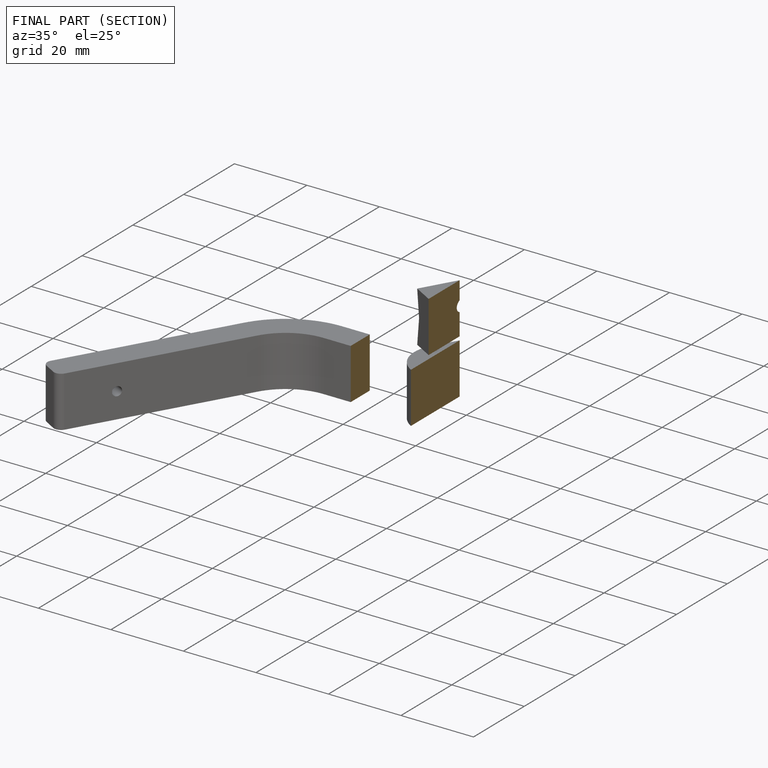
[diagram: finished part — half-section view (interior)]
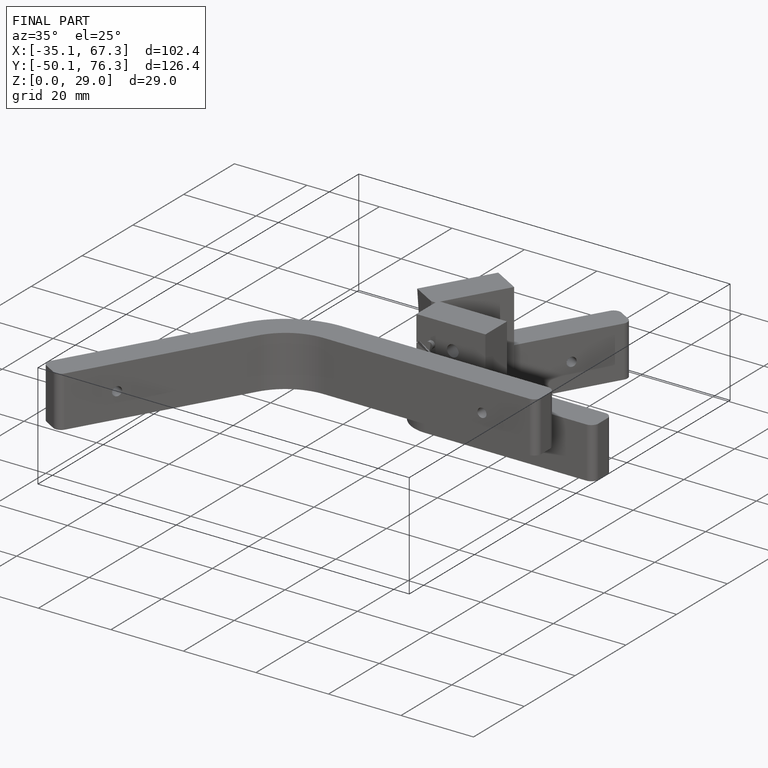
[diagram: finished part — iso view with bounding-box wireframe]
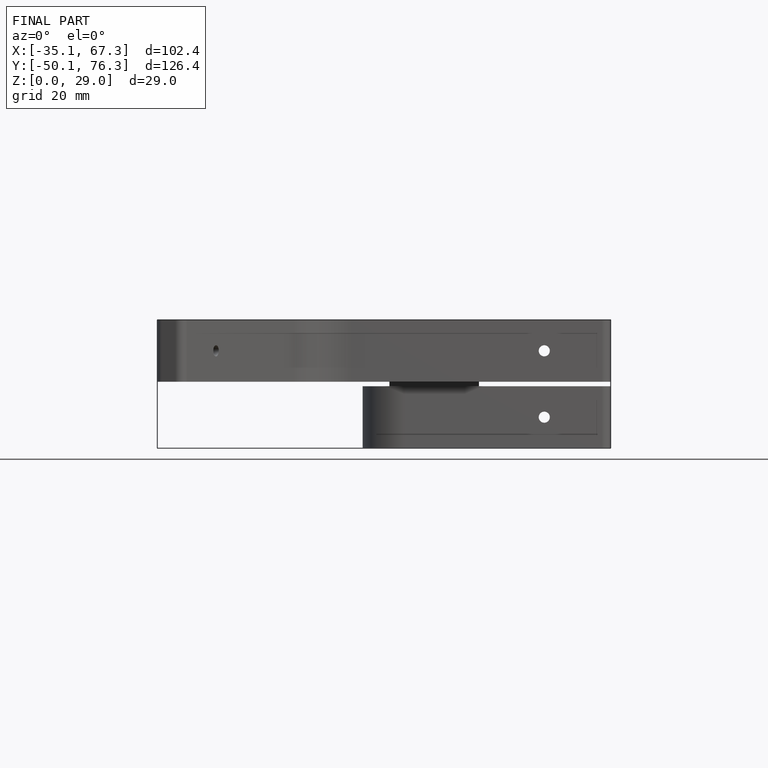
[diagram: finished part — front view with bounding-box wireframe]
